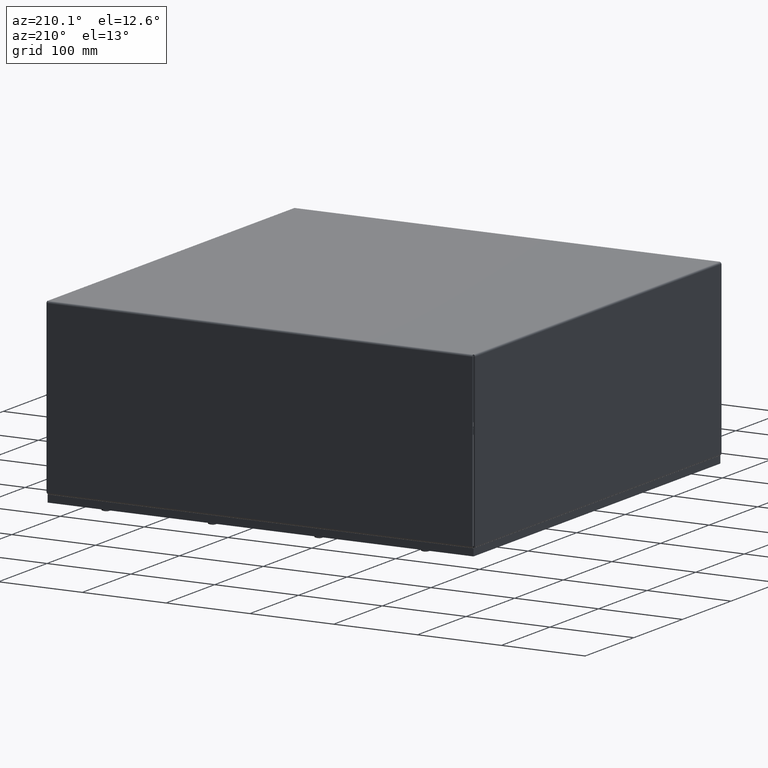
[diagram: clean part render]
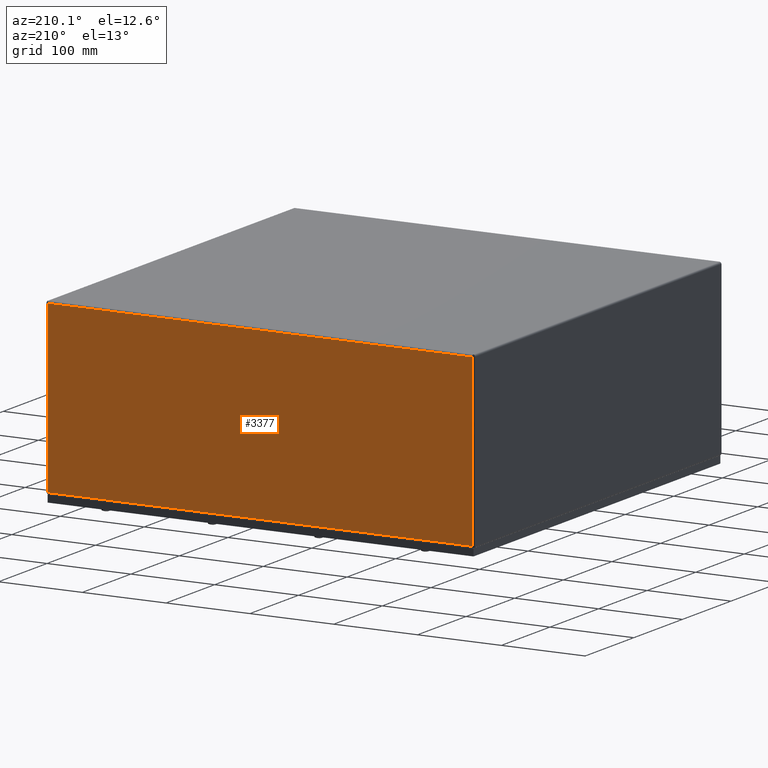
[diagram: same view with one face highlighted and labeled with its STEP entity id]
A machine part, auxiliary view. The second image highlights one B-rep face of the part: STEP entity #3377.
In plain terms, the highlighted planar face has unit normal (0, 1, -0).
Its self-contained STEP definition (entity closure, byte-faithful):
#377=PLANE($,#3616);
#544=LINE($,#5317,#756);
#559=LINE($,#5401,#771);
#560=LINE($,#5403,#772);
#561=LINE($,#5404,#773);
#756=VECTOR($,#4126,19.9628578643763);
#771=VECTOR($,#4159,7.8808);
#772=VECTOR($,#4160,19.9628578643763);
#773=VECTOR($,#4161,7.8808);
#1095=FACE_OUTER_BOUND($,#1327,.T.);
#1327=EDGE_LOOP($,(#2547,#2548,#2549,#2550));
#1735=VERTEX_POINT($,#5305);
#1736=VERTEX_POINT($,#5316);
#1745=VERTEX_POINT($,#5400);
#1746=VERTEX_POINT($,#5402);
#2031=EDGE_CURVE($,#1736,#1735,#544,.T.);
#2049=EDGE_CURVE($,#1745,#1735,#559,.T.);
#2050=EDGE_CURVE($,#1745,#1746,#560,.T.);
#2051=EDGE_CURVE($,#1736,#1746,#561,.T.);
#2547=ORIENTED_EDGE($,*,*,#2031,.T.);
#2548=ORIENTED_EDGE($,*,*,#2049,.F.);
#2549=ORIENTED_EDGE($,*,*,#2050,.T.);
#2550=ORIENTED_EDGE($,*,*,#2051,.F.);
#3377=ADVANCED_FACE($,(#1095),#377,.T.);
#3616=AXIS2_PLACEMENT_3D($,#5399,#4157,#4158);
#4126=DIRECTION($,(-1.,5.85396927883055E-016,-4.20392565711367E-016));
#4157=DIRECTION('center_axis',(5.85396927883077E-016,1.,-5.15025771949604E-014));
#4158=DIRECTION('ref_axis',(1.,0.,0.));
#4159=DIRECTION($,(-7.14905195356542E-030,-5.14531160026499E-014,-1.));
#4160=DIRECTION($,(1.,-5.85396927883077E-016,2.29684174331984E-029));
#4161=DIRECTION($,(7.14905195356542E-030,5.14531160026499E-014,1.));
#5305=CARTESIAN_POINT('',(0.0810710678118567,20.1249999999996,-7.8964));
#5316=CARTESIAN_POINT('',(20.0439289321881,20.1249999999996,-7.89639999999999));
#5317=CARTESIAN_POINT($,(15.0532144660941,20.1249999999996,-7.8964));
#5399=CARTESIAN_POINT('Origin',(10.0625,20.1249999999998,-3.96413240765383));
#5400=CARTESIAN_POINT('',(0.0810710678118568,20.125,-0.0156000000000014));
#5401=CARTESIAN_POINT($,(0.0810710678118568,20.125,-0.0156000000000041));
#5402=CARTESIAN_POINT('',(20.0439289321881,20.125,-0.0155999999999958));
#5403=CARTESIAN_POINT($,(10.0625,20.125,-0.0156000000000014));
#5404=CARTESIAN_POINT($,(20.0439289321881,20.125,-0.0155999999999958));